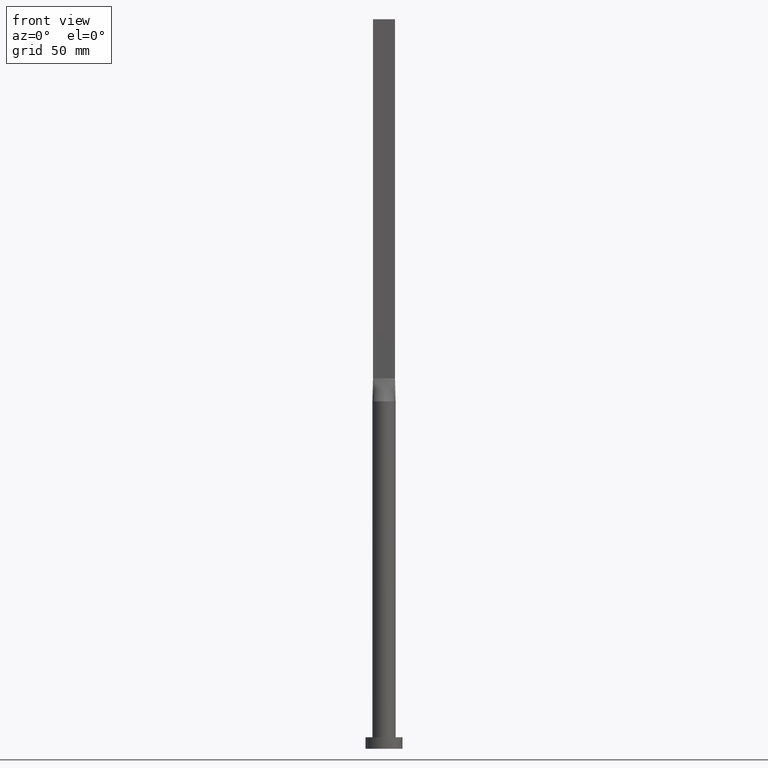
[diagram: clean part render]
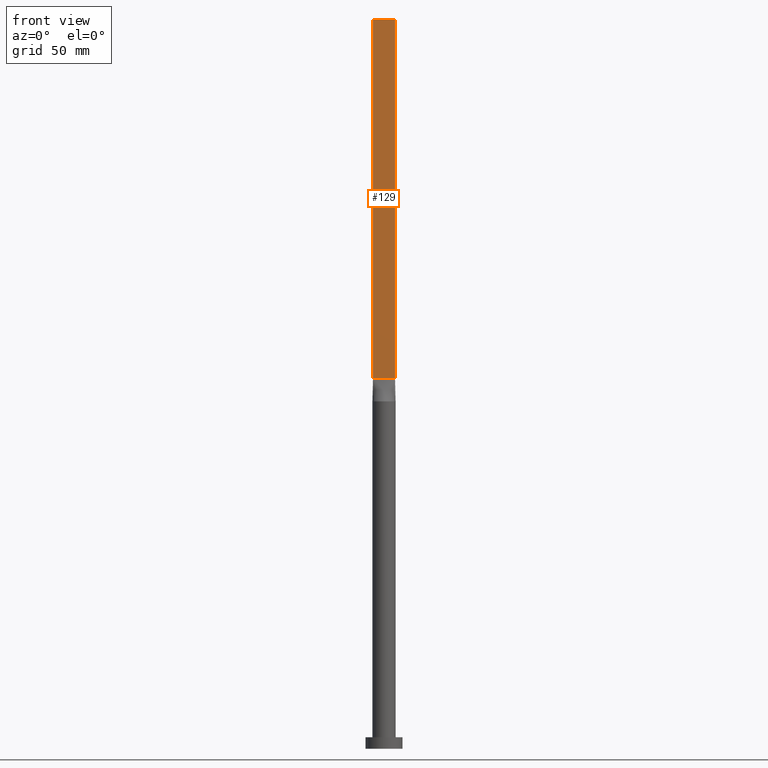
[diagram: same view with one face highlighted and labeled with its STEP entity id]
A machine part, front view. The second image highlights one B-rep face of the part: STEP entity #129.
In plain terms, the highlighted planar face has unit normal (0, 1, -0).
Its self-contained STEP definition (entity closure, byte-faithful):
#24 = CARTESIAN_POINT ( 'NONE',  ( -4.750000000000000000, -0.9999999999999991118, 160.0000000000000000 ) ) ;
#46 = ORIENTED_EDGE ( 'NONE', *, *, #277, .F. ) ;
#59 = EDGE_LOOP ( 'NONE', ( #355, #46, #140, #94 ) ) ;
#65 = PLANE ( 'NONE',  #468 ) ;
#72 = FACE_OUTER_BOUND ( 'NONE', #59, .T. ) ;
#76 = EDGE_CURVE ( 'NONE', #128, #516, #344, .T. ) ;
#80 = VERTEX_POINT ( 'NONE', #571 ) ;
#94 = ORIENTED_EDGE ( 'NONE', *, *, #374, .T. ) ;
#96 = EDGE_CURVE ( 'NONE', #142, #80, #420, .T. ) ;
#114 = DIRECTION ( 'NONE',  ( 6.847592668329501559E-17, 1.000000000000000000, -0.000000000000000000 ) ) ;
#116 = DIRECTION ( 'NONE',  ( 1.000000000000000000, -6.847592668329501559E-17, 0.000000000000000000 ) ) ;
#123 = DIRECTION ( 'NONE',  ( -0.000000000000000000, -0.000000000000000000, -1.000000000000000000 ) ) ;
#128 = VERTEX_POINT ( 'NONE', #379 ) ;
#129 = ADVANCED_FACE ( 'NONE', ( #72 ), #65, .F. ) ;
#140 = ORIENTED_EDGE ( 'NONE', *, *, #96, .F. ) ;
#142 = VERTEX_POINT ( 'NONE', #209 ) ;
#147 = DIRECTION ( 'NONE',  ( -0.000000000000000000, -0.000000000000000000, -1.000000000000000000 ) ) ;
#152 = CARTESIAN_POINT ( 'NONE',  ( -4.750000000000000000, -0.9999999999999991118, 315.0000000000000000 ) ) ;
#162 = VECTOR ( 'NONE', #421, 1000.000000000000000 ) ;
#167 = CARTESIAN_POINT ( 'NONE',  ( 4.750000000000000000, -0.9999999999999997780, 315.0000000000000000 ) ) ;
#177 = LINE ( 'NONE', #167, #494 ) ;
#181 = CARTESIAN_POINT ( 'NONE',  ( -4.750000000000000000, -0.9999999999999991118, 315.0000000000000000 ) ) ;
#209 = CARTESIAN_POINT ( 'NONE',  ( -4.750000000000000000, -0.9999999999999991118, 315.0000000000000000 ) ) ;
#261 = DIRECTION ( 'NONE',  ( -1.000000000000000000, 6.847592668329501559E-17, 0.000000000000000000 ) ) ;
#277 = EDGE_CURVE ( 'NONE', #80, #516, #177, .T. ) ;
#290 = LINE ( 'NONE', #181, #471 ) ;
#344 = LINE ( 'NONE', #24, #455 ) ;
#355 = ORIENTED_EDGE ( 'NONE', *, *, #76, .T. ) ;
#374 = EDGE_CURVE ( 'NONE', #142, #128, #290, .T. ) ;
#379 = CARTESIAN_POINT ( 'NONE',  ( -4.750000000000000000, -0.9999999999999991118, 160.0000000000000000 ) ) ;
#420 = LINE ( 'NONE', #152, #162 ) ;
#421 = DIRECTION ( 'NONE',  ( 1.000000000000000000, -6.847592668329501559E-17, 0.000000000000000000 ) ) ;
#455 = VECTOR ( 'NONE', #116, 1000.000000000000000 ) ;
#468 = AXIS2_PLACEMENT_3D ( 'NONE', #485, #114, #261 ) ;
#471 = VECTOR ( 'NONE', #147, 1000.000000000000000 ) ;
#485 = CARTESIAN_POINT ( 'NONE',  ( -4.750000000000000000, -0.9999999999999991118, 315.0000000000000000 ) ) ;
#494 = VECTOR ( 'NONE', #123, 1000.000000000000000 ) ;
#516 = VERTEX_POINT ( 'NONE', #535 ) ;
#535 = CARTESIAN_POINT ( 'NONE',  ( 4.750000000000000000, -0.9999999999999997780, 160.0000000000000000 ) ) ;
#571 = CARTESIAN_POINT ( 'NONE',  ( 4.750000000000000000, -0.9999999999999997780, 315.0000000000000000 ) ) ;